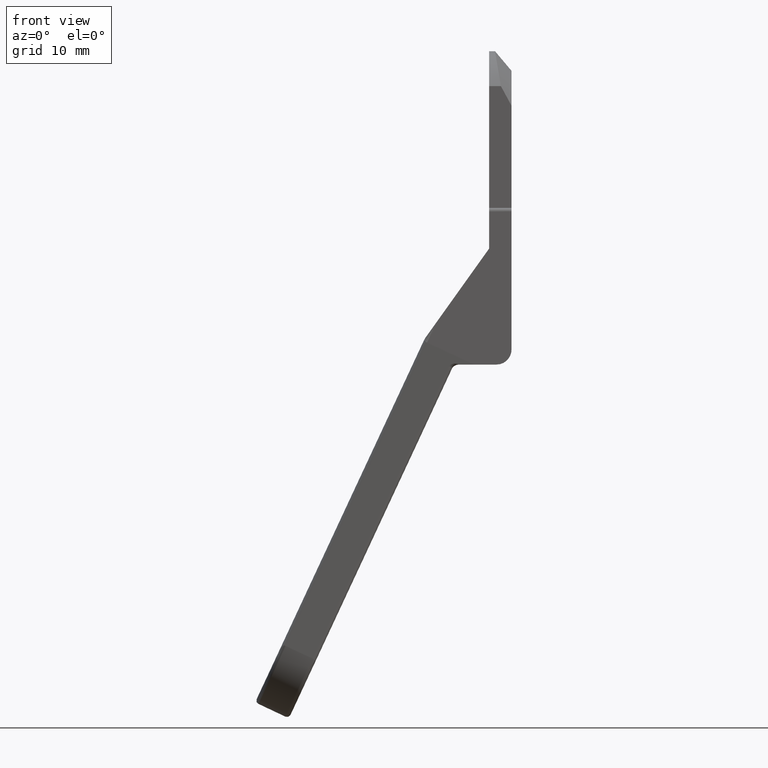
[diagram: clean part render]
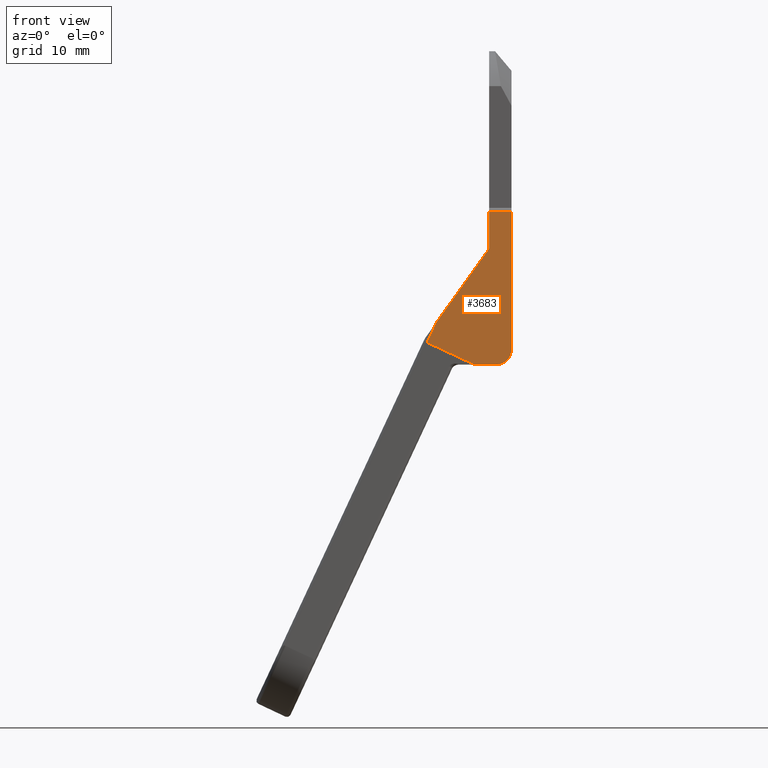
[diagram: same view with one face highlighted and labeled with its STEP entity id]
A machine part, front view. The second image highlights one B-rep face of the part: STEP entity #3683.
In plain terms, the highlighted face is a freeform B-spline surface patch.
Its self-contained STEP definition (entity closure, byte-faithful):
#268=CARTESIAN_POINT('',(-11.312355191430820,-11.0,-28.044151960251401));
#269=VERTEX_POINT('',#268);
#283=CARTESIAN_POINT('',(-10.042328964206421,-11.0,-25.320571920595800));
#284=VERTEX_POINT('',#283);
#285=CARTESIAN_POINT('',(-10.042328964206421,-11.0,-25.320571920595800));
#286=CARTESIAN_POINT('',(-11.312355191430820,-11.0,-28.044151960251401));
#287=QUASI_UNIFORM_CURVE('',1,(#285,#286),.UNSPECIFIED.,.F.,.U.);
#288=EDGE_CURVE('',#284,#269,#287,.T.);
#386=CARTESIAN_POINT('',(-4.973518558602170,-11.0,-31.0));
#387=VERTEX_POINT('',#386);
#401=CARTESIAN_POINT('',(-11.312355191430820,-11.0,-28.044151960251401));
#402=CARTESIAN_POINT('',(-4.973518558602170,-11.0,-31.0));
#403=QUASI_UNIFORM_CURVE('',1,(#401,#402),.UNSPECIFIED.,.F.,.U.);
#404=EDGE_CURVE('',#269,#387,#403,.T.);
#1092=CARTESIAN_POINT('',(-3.0,-11.0,-10.500000000000000));
#1093=VERTEX_POINT('',#1092);
#1109=CARTESIAN_POINT('',(0.0,-11.0,-10.500000000000000));
#1110=VERTEX_POINT('',#1109);
#1111=CARTESIAN_POINT('',(0.0,-11.0,-10.500000000000000));
#1112=CARTESIAN_POINT('',(-3.0,-11.0,-10.500000000000000));
#1113=QUASI_UNIFORM_CURVE('',1,(#1111,#1112),.UNSPECIFIED.,.F.,.U.);
#1114=EDGE_CURVE('',#1110,#1093,#1113,.T.);
#3453=CARTESIAN_POINT('',(0.0,-11.0,-29.0));
#3454=VERTEX_POINT('',#3453);
#3460=CARTESIAN_POINT('',(-2.0,-11.0,-31.0));
#3461=VERTEX_POINT('',#3460);
#3462=CARTESIAN_POINT('',(-2.0,-11.0,-31.0));
#3463=CARTESIAN_POINT('',(0.0,-11.0,-31.000000000000007));
#3464=CARTESIAN_POINT('',(0.0,-11.0,-29.0));
#3472=(BOUNDED_CURVE()B_SPLINE_CURVE(2,(#3462,#3463,#3464),.UNSPECIFIED.,.F.,.U.)CURVE()GEOMETRIC_REPRESENTATION_ITEM()QUASI_UNIFORM_CURVE()RATIONAL_B_SPLINE_CURVE((1.0,0.707106781186548,1.0))REPRESENTATION_ITEM(''));
#3473=EDGE_CURVE('',#3461,#3454,#3472,.T.);
#3524=CARTESIAN_POINT('',(-3.0,-11.0,-15.462337000000000));
#3525=VERTEX_POINT('',#3524);
#3531=CARTESIAN_POINT('',(-3.0,-11.0,-10.500000000000000));
#3532=CARTESIAN_POINT('',(-3.0,-11.0,-15.462337000000000));
#3533=QUASI_UNIFORM_CURVE('',1,(#3531,#3532),.UNSPECIFIED.,.F.,.U.);
#3534=EDGE_CURVE('',#1093,#3525,#3533,.T.);
#3589=CARTESIAN_POINT('',(0.0,-11.0,-29.0));
#3590=CARTESIAN_POINT('',(0.0,-11.0,-10.500000000000000));
#3591=QUASI_UNIFORM_CURVE('',1,(#3589,#3590),.UNSPECIFIED.,.F.,.U.);
#3592=EDGE_CURVE('',#3454,#1110,#3591,.T.);
#3609=CARTESIAN_POINT('',(-3.0,-11.0,-15.462337000000000));
#3610=CARTESIAN_POINT('',(-10.042328964206421,-11.0,-25.320571920595800));
#3611=QUASI_UNIFORM_CURVE('',1,(#3609,#3610),.UNSPECIFIED.,.F.,.U.);
#3612=EDGE_CURVE('',#3525,#284,#3611,.T.);
#3664=CARTESIAN_POINT('',(-11.877407205124950,-11.0,-9.476025039732978));
#3665=CARTESIAN_POINT('',(0.565052418255481,-11.0,-9.476025039732978));
#3666=CARTESIAN_POINT('',(-11.877407205124950,-11.0,-32.023975510119882));
#3667=CARTESIAN_POINT('',(0.565052418255481,-11.0,-32.023975510119882));
#3668=B_SPLINE_SURFACE_WITH_KNOTS('',1,1,((#3664,#3666),(#3665,#3667)),.UNSPECIFIED.,.F.,.F.,.U.,(2,2),(2,2),(0.0,12.442459623380429),(0.0,22.547950470386901),.UNSPECIFIED.);
#3669=ORIENTED_EDGE('',*,*,#3612,.T.);
#3670=ORIENTED_EDGE('',*,*,#288,.T.);
#3671=ORIENTED_EDGE('',*,*,#404,.T.);
#3672=CARTESIAN_POINT('',(-4.973518558602170,-11.0,-31.0));
#3673=CARTESIAN_POINT('',(-2.0,-11.0,-31.0));
#3674=QUASI_UNIFORM_CURVE('',1,(#3672,#3673),.UNSPECIFIED.,.F.,.U.);
#3675=EDGE_CURVE('',#387,#3461,#3674,.T.);
#3676=ORIENTED_EDGE('',*,*,#3675,.T.);
#3677=ORIENTED_EDGE('',*,*,#3473,.T.);
#3678=ORIENTED_EDGE('',*,*,#3592,.T.);
#3679=ORIENTED_EDGE('',*,*,#1114,.T.);
#3680=ORIENTED_EDGE('',*,*,#3534,.T.);
#3681=EDGE_LOOP('',(#3669,#3670,#3671,#3676,#3677,#3678,#3679,#3680));
#3682=FACE_OUTER_BOUND('',#3681,.T.);
#3683=ADVANCED_FACE('',(#3682),#3668,.F.);